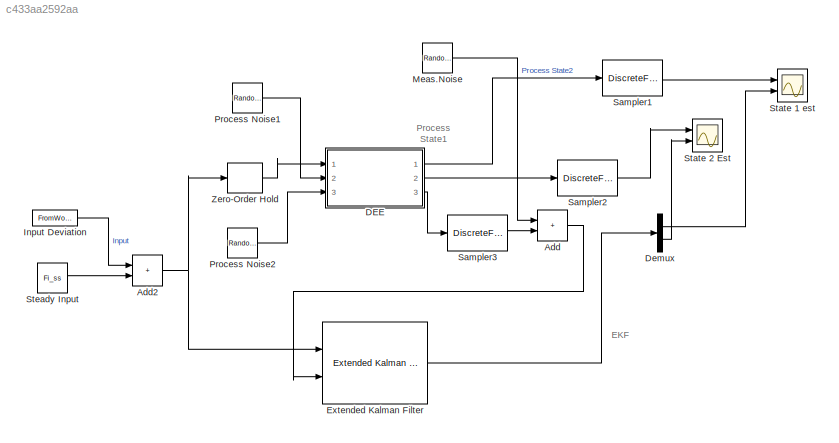
MODEL slx_c433aa2592aa
KIND model
CONFIG AbsTol = auto
CONFIG EnableMultiTasking = off
CONFIG FixedStep = auto
CONFIG MaxStep = auto
CONFIG MinStep = auto
CONFIG RelTol = 1e-3
CONFIG SampleTimeConstraint = Unconstrained
CONFIG SolverName = VariableStepAuto
CONFIG StartTime = 0.0
CONFIG StopTime = tf
WORKSPACE source: MATLAB code (in-file)
WORKSPACE code: Ac = 1.2; Cv = 0.8;
WORKSPACE x0 = 1
WORKSPACE x1 = 1
WORKSPACE Fi_ss = 2
WORKSPACE Ts = 0.1
WORKSPACE tf = 127.4
WORKSPACE kvec = (0:Ts:tf)'
WORKSPACE N = length(kvec)
WORKSPACE ukvec = idinput(N,'prbs',[0 0.2],[-1 1])
WORKSPACE simin = [kvec ukvec]
WORKSPACE code: Qtrue = [0.2 0; 0 0.1];
WORKSPACE Rtrue = 0.1
BLOCK [Sum] Add
  IconShape = rectangular
  Ports = [2, 1]
BLOCK [Sum] Add2
  IconShape = rectangular
  Ports = [2, 1]
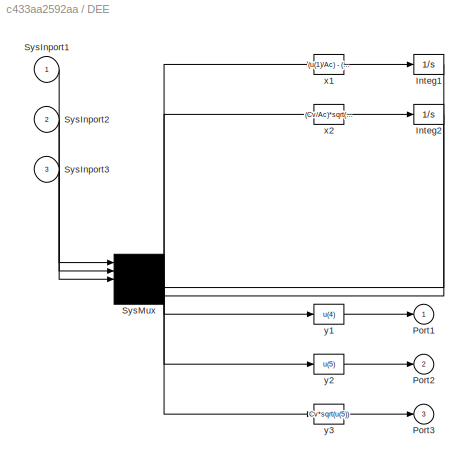
BLOCK [SubSystem] DEE
  OpenFcn = diffeqed
  Ports = [3, 3]
  RequestExecContextInheritance = off
BLOCK [Integrator] DEE/Integ1
  InitialCondition = x0
  Ports = [1, 1]
BLOCK [Integrator] DEE/Integ2
  InitialCondition = x1
  Ports = [1, 1]
BLOCK [Outport] DEE/Port1
BLOCK [Outport] DEE/Port2
  Port = 2
BLOCK [Outport] DEE/Port3
  Port = 3
BLOCK [Inport] DEE/SysInport1
BLOCK [Inport] DEE/SysInport2
  Port = 2
BLOCK [Inport] DEE/SysInport3
  Port = 3
BLOCK [Mux] DEE/SysMux
  Inputs = 5
  Ports = [5, 1]
BLOCK [Fcn] DEE/x1
  Expr = (u(1)/Ac) - (Cv/Ac)*sqrt(u(4)) + u(2)
BLOCK [Fcn] DEE/x2
  Expr = (Cv/Ac)*sqrt(u(4)) - (Cv/Ac)*sqrt(u(5)) + u(3)
BLOCK [Fcn] DEE/y1
  Expr = u(4)
BLOCK [Fcn] DEE/y2
  Expr = u(5)
BLOCK [Fcn] DEE/y3
  Expr = Cv*sqrt(u(5))
BLOCK [Demux] Demux
  Outputs = 2
  Ports = [1, 2]
BLOCK [Reference] Extended Kalman Filter  REF=sharedTrackingLibrary/Extended Kalman Filter
  Ports = [2, 1]
  SourceBlock = sharedTrackingLibrary/Extended Kalman Filter
  SourceProductBaseCode = CT,DR,TF,ID,LP,NV,AR,RO,RR,UV,VE
  SourceType = Extended Kalman Filter
BLOCK [FromWorkspace] Input Deviation
  Interpolate = off
  OutputAfterFinalValue = Holding final value
  SampleTime = Ts
  VariableName = simin
BLOCK [RandomNumber] Meas.Noise
  SampleTime = Ts
  Seed = 4781
  Variance = Rtrue
BLOCK [RandomNumber] Process Noise1
  SampleTime = Ts
  Seed = 38760
  Variance = Qtrue(1,1)
BLOCK [RandomNumber] Process Noise2
  SampleTime = Ts
  Seed = 4564
  Variance = Qtrue(2,2)
BLOCK [DiscreteFilter] Sampler1
  Denominator = [1]
  InputPortMap = u0
  Ports = [1, 1]
  SampleTime = Ts
BLOCK [DiscreteFilter] Sampler2
  Denominator = [1]
  InputPortMap = u0
  Ports = [1, 1]
  SampleTime = Ts
BLOCK [DiscreteFilter] Sampler3
  Denominator = [1]
  InputPortMap = u0
  Ports = [1, 1]
  SampleTime = Ts
BLOCK [Scope] State 1 est
  Floating = off
  NumInputPorts = 2
  Ports = [2]
  ScopeSpecificationString = Simulink.scopes.TimeScopeBlockCfg('CurrentConfiguration', extmgr.ConfigurationSet(extmgr.Configuration('Core','General UI',true),extmgr.Configuration('Core','Source UI',true),extmgr.Configuration('Sources','WiredSimulink',true,'DataLoggingVariableName','ScopeData1'),extmgr.Configuration('Visuals','Time Domain',true,'SerializedDisplays',{struct('MinYLimReal','0.06542','MaxYLimReal','9.4112','YLabel...<+2052ch>
BLOCK [Scope] State 2 Est
  Floating = off
  NumInputPorts = 2
  Ports = [2]
  ScopeSpecificationString = Simulink.scopes.TimeScopeBlockCfg('CurrentConfiguration', extmgr.ConfigurationSet(extmgr.Configuration('Core','General UI',true),extmgr.Configuration('Core','Source UI',true),extmgr.Configuration('Sources','WiredSimulink',true),extmgr.Configuration('Visuals','Time Domain',true,'SerializedDisplays',{struct('MinYLimReal','0.05445','MaxYLimReal','8.22676','YLabelReal','','MinYLimMag','0.05445','MaxYL...<+2013ch>
BLOCK [Constant] Steady Input
  SampleTime = Ts
  Value = Fi_ss
BLOCK [ZeroOrderHold] Zero-Order Hold
  SampleTime = Ts
ANNOTATION (root): EKF
ANNOTATION (root): Process State1
NET Add2:1 -> Extended Kalman Filter:1, Zero-Order Hold:1
LINE Add:1 -> Extended Kalman Filter:2
LINE DEE/Integ1:1 -> DEE/SysMux:4
LINE DEE/Integ2:1 -> DEE/SysMux:5
LINE DEE/SysInport1:1 -> DEE/SysMux:1
LINE DEE/SysInport2:1 -> DEE/SysMux:2
LINE DEE/SysInport3:1 -> DEE/SysMux:3
NET DEE/SysMux:1 -> DEE/x1:1, DEE/x2:1, DEE/y1:1, DEE/y2:1, DEE/y3:1
LINE DEE/x1:1 -> DEE/Integ1:1
LINE DEE/x2:1 -> DEE/Integ2:1
LINE DEE/y1:1 -> DEE/Port1:1
LINE DEE/y2:1 -> DEE/Port2:1
LINE DEE/y3:1 -> DEE/Port3:1
LINE DEE:1 -> Sampler1:1
LINE DEE:2 -> Sampler2:1
LINE DEE:3 -> Sampler3:1
LINE Demux:1 -> State 1 est:2
LINE Demux:2 -> State 2 Est:2
LINE Extended Kalman Filter:1 -> Demux:1
LINE Input Deviation:1 -> Add2:1
LINE Meas.Noise:1 -> Add:1
LINE Process Noise1:1 -> DEE:2
LINE Process Noise2:1 -> DEE:3
LINE Sampler1:1 -> State 1 est:1
LINE Sampler2:1 -> State 2 Est:1
LINE Sampler3:1 -> Add:2
LINE Steady Input:1 -> Add2:2
LINE Zero-Order Hold:1 -> DEE:1
note: NET lines group one-source signal fan-out (src -> all destinations, sorted); 1:1 wires keep LINE
